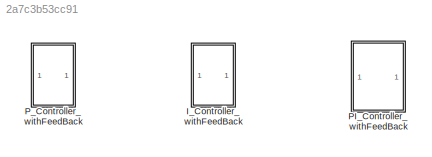
MODEL slx_2a7c3b53cc91
KIND model
CONFIG AbsTol = auto
CONFIG EnableMultiTasking = off
CONFIG FixedStep = auto
CONFIG MaxStep = 0.001
CONFIG MinStep = auto
CONFIG RelTol = 1e-3
CONFIG SampleTimeConstraint = Unconstrained
CONFIG SolverName = VariableStepAuto
CONFIG StartTime = 0.0
CONFIG StopTime = 10.0
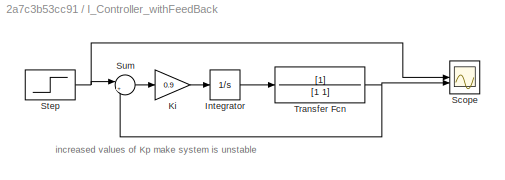
BLOCK [SubSystem] I_Controller_withFeedBack
BLOCK [Integrator] I_Controller_withFeedBack/Integrator
BLOCK [Gain] I_Controller_withFeedBack/Ki
  Gain = 0.9
BLOCK [Scope] I_Controller_withFeedBack/Scope
  Floating = off
  NumInputPorts = 2
  ScopeSpecificationString = Simulink.scopes.TimeScopeBlockCfg('CurrentConfiguration', extmgr.ConfigurationSet(extmgr.Configuration('Core','General UI',true),extmgr.Configuration('Core','Source UI',true),extmgr.Configuration('Sources','WiredSimulink',true,'DataLoggingVariableName','ScopeData1'),extmgr.Configuration('Visuals','Time Domain',true,'SerializedDisplays',{struct('MinYLimReal','-0.125','MaxYLimReal','1.125','YLabelRe...<+1372ch>
BLOCK [Step] I_Controller_withFeedBack/Step
  SampleTime = 0
BLOCK [Sum] I_Controller_withFeedBack/Sum
  Inputs = |+-
BLOCK [TransferFcn] I_Controller_withFeedBack/Transfer Fcn
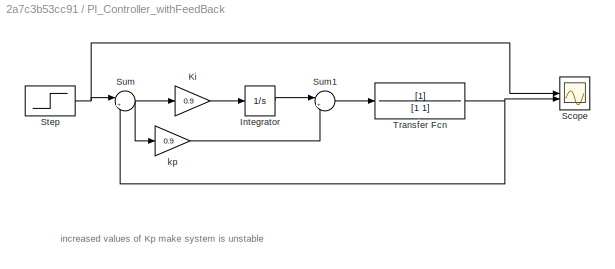
BLOCK [SubSystem] PI_Controller_withFeedBack
BLOCK [Integrator] PI_Controller_withFeedBack/Integrator
BLOCK [Gain] PI_Controller_withFeedBack/Ki
  Gain = 0.9
BLOCK [Scope] PI_Controller_withFeedBack/Scope
  Floating = off
  NumInputPorts = 2
  ScopeSpecificationString = Simulink.scopes.TimeScopeBlockCfg('CurrentConfiguration', extmgr.ConfigurationSet(extmgr.Configuration('Core','General UI',true),extmgr.Configuration('Core','Source UI',true),extmgr.Configuration('Sources','WiredSimulink',true,'DataLoggingVariableName','ScopeData1'),extmgr.Configuration('Visuals','Time Domain',true),extmgr.Configuration('Tools','Plot Navigation',true),extmgr.Configuration('Tools',...<+84ch>
BLOCK [Step] PI_Controller_withFeedBack/Step
  SampleTime = 0
BLOCK [Sum] PI_Controller_withFeedBack/Sum
  Inputs = |+-
BLOCK [Sum] PI_Controller_withFeedBack/Sum1
  Inputs = |++
BLOCK [TransferFcn] PI_Controller_withFeedBack/Transfer Fcn
BLOCK [Gain] PI_Controller_withFeedBack/kp
  Gain = 0.9
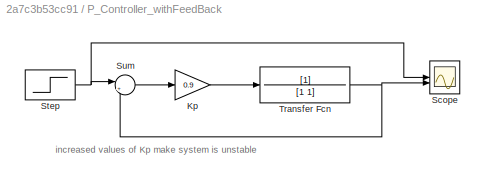
BLOCK [SubSystem] P_Controller_withFeedBack
BLOCK [Gain] P_Controller_withFeedBack/Kp
  Gain = 0.9
BLOCK [Scope] P_Controller_withFeedBack/Scope
  Floating = off
  NumInputPorts = 2
  ScopeSpecificationString = Simulink.scopes.TimeScopeBlockCfg('CurrentConfiguration', extmgr.ConfigurationSet(extmgr.Configuration('Core','General UI',true),extmgr.Configuration('Core','Source UI',true),extmgr.Configuration('Sources','WiredSimulink',true),extmgr.Configuration('Visuals','Time Domain',true,'SerializedDisplays',{struct('MinYLimReal','-0.125','MaxYLimReal','1.125','YLabelReal','','MinYLimMag','0.00000','MaxYLimM...<+1333ch>
BLOCK [Step] P_Controller_withFeedBack/Step
  SampleTime = 0
BLOCK [Sum] P_Controller_withFeedBack/Sum
  Inputs = |+-
BLOCK [TransferFcn] P_Controller_withFeedBack/Transfer Fcn
ANNOTATION I_Controller_withFeedBack: increased values of Kp make system is unstable
ANNOTATION PI_Controller_withFeedBack: increased values of Kp make system is unstable
ANNOTATION P_Controller_withFeedBack: increased values of Kp make system is unstable
LINE I_Controller_withFeedBack/Integrator:1 -> I_Controller_withFeedBack/Transfer Fcn:1
LINE I_Controller_withFeedBack/Ki:1 -> I_Controller_withFeedBack/Integrator:1
NET I_Controller_withFeedBack/Step:1 -> I_Controller_withFeedBack/Scope:1, I_Controller_withFeedBack/Sum:1
LINE I_Controller_withFeedBack/Sum:1 -> I_Controller_withFeedBack/Ki:1
NET I_Controller_withFeedBack/Transfer Fcn:1 -> I_Controller_withFeedBack/Scope:2, I_Controller_withFeedBack/Sum:2
LINE PI_Controller_withFeedBack/Integrator:1 -> PI_Controller_withFeedBack/Sum1:1
LINE PI_Controller_withFeedBack/Ki:1 -> PI_Controller_withFeedBack/Integrator:1
NET PI_Controller_withFeedBack/Step:1 -> PI_Controller_withFeedBack/Scope:1, PI_Controller_withFeedBack/Sum:1
LINE PI_Controller_withFeedBack/Sum1:1 -> PI_Controller_withFeedBack/Transfer Fcn:1
NET PI_Controller_withFeedBack/Sum:1 -> PI_Controller_withFeedBack/Ki:1, PI_Controller_withFeedBack/kp:1
NET PI_Controller_withFeedBack/Transfer Fcn:1 -> PI_Controller_withFeedBack/Scope:2, PI_Controller_withFeedBack/Sum:2
LINE PI_Controller_withFeedBack/kp:1 -> PI_Controller_withFeedBack/Sum1:2
LINE P_Controller_withFeedBack/Kp:1 -> P_Controller_withFeedBack/Transfer Fcn:1
NET P_Controller_withFeedBack/Step:1 -> P_Controller_withFeedBack/Scope:1, P_Controller_withFeedBack/Sum:1
LINE P_Controller_withFeedBack/Sum:1 -> P_Controller_withFeedBack/Kp:1
NET P_Controller_withFeedBack/Transfer Fcn:1 -> P_Controller_withFeedBack/Scope:2, P_Controller_withFeedBack/Sum:2
note: NET lines group one-source signal fan-out (src -> all destinations, sorted); 1:1 wires keep LINE
